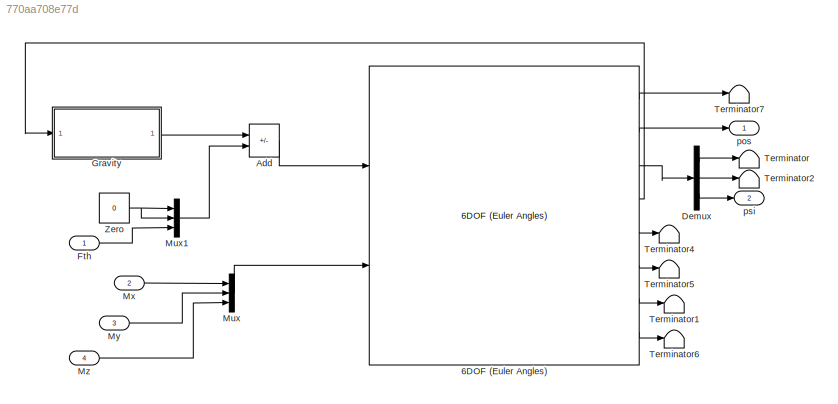
MODEL slx_770aa708e77d
KIND model
CONFIG AbsTol = auto
CONFIG EnableMultiTasking = off
CONFIG FixedStep = auto
CONFIG MaxStep = auto
CONFIG MinStep = auto
CONFIG RelTol = 1e-3
CONFIG SampleTimeConstraint = Unconstrained
CONFIG SolverName = VariableStepAuto
CONFIG StartTime = 0.0
CONFIG StopTime = 10.0
BLOCK [Reference] 6DOF (Euler Angles)  REF=shared6dof/6DOF (Euler Angles)
  Ports = [2, 8]
  SourceBlock = shared6dof/6DOF (Euler Angles)
  SourceProductBaseCode = AE,PW,DR,MT,UV,VE
  SourceType = 6DOF EoM (Body Axis)
BLOCK [Sum] Add
  IconShape = rectangular
  Inputs = +-
  Ports = [2, 1]
BLOCK [Demux] Demux
  Outputs = 3
  Ports = [1, 3]
BLOCK [Inport] Fth
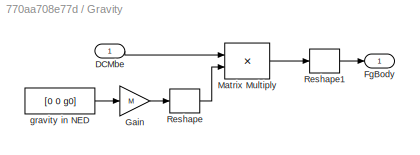
BLOCK [SubSystem] Gravity 
  Ports = [1, 1]
  RequestExecContextInheritance = off
BLOCK [Inport] Gravity /DCMbe
BLOCK [Outport] Gravity /FgBody
BLOCK [Gain] Gravity /Gain
  Gain = M
BLOCK [Product] Gravity /Matrix Multiply
  Multiplication = Matrix(*)
  Ports = [2, 1]
BLOCK [Reshape] Gravity /Reshape
  OutputDimensionality = Column vector (2-D)
  Ports = [1, 1]
BLOCK [Reshape] Gravity /Reshape1
  Ports = [1, 1]
BLOCK [Constant] Gravity /gravity in NED
  Value = [0 0 g0]
BLOCK [Mux] Mux
  DisplayOption = bar
  Inputs = 3
  Ports = [3, 1]
BLOCK [Mux] Mux1
  DisplayOption = bar
  Inputs = 3
  Ports = [3, 1]
BLOCK [Inport] Mx
  Port = 2
BLOCK [Inport] My
  Port = 3
BLOCK [Inport] Mz
  Port = 4
BLOCK [Terminator] Terminator
BLOCK [Terminator] Terminator1
BLOCK [Terminator] Terminator2
BLOCK [Terminator] Terminator4
BLOCK [Terminator] Terminator5
BLOCK [Terminator] Terminator6
BLOCK [Terminator] Terminator7
BLOCK [Constant] Zero
  OutDataTypeStr = Inherit: Inherit via back propagation
  Value = 0
BLOCK [Outport] pos
BLOCK [Outport] psi
  Port = 2
LINE 6DOF (Euler Angles):1 -> Terminator7:1
LINE 6DOF (Euler Angles):2 -> pos:1
LINE 6DOF (Euler Angles):3 -> Demux:1
LINE 6DOF (Euler Angles):4 -> Gravity :1
LINE 6DOF (Euler Angles):5 -> Terminator4:1
LINE 6DOF (Euler Angles):6 -> Terminator5:1
LINE 6DOF (Euler Angles):7 -> Terminator1:1
LINE 6DOF (Euler Angles):8 -> Terminator6:1
LINE Add:1 -> 6DOF (Euler Angles):1
LINE Demux:1 -> Terminator:1
LINE Demux:2 -> Terminator2:1
LINE Demux:3 -> psi:1
LINE Fth:1 -> Mux1:3
LINE Gravity /DCMbe:1 -> Gravity /Matrix Multiply:1
LINE Gravity /Gain:1 -> Gravity /Reshape:1
LINE Gravity /Matrix Multiply:1 -> Gravity /Reshape1:1
LINE Gravity /Reshape1:1 -> Gravity /FgBody:1
LINE Gravity /Reshape:1 -> Gravity /Matrix Multiply:2
LINE Gravity /gravity in NED:1 -> Gravity /Gain:1
LINE Gravity :1 -> Add:1
LINE Mux1:1 -> Add:2
LINE Mux:1 -> 6DOF (Euler Angles):2
LINE Mx:1 -> Mux:1
LINE My:1 -> Mux:2
LINE Mz:1 -> Mux:3
NET Zero:1 -> Mux1:1, Mux1:2
note: NET lines group one-source signal fan-out (src -> all destinations, sorted); 1:1 wires keep LINE
